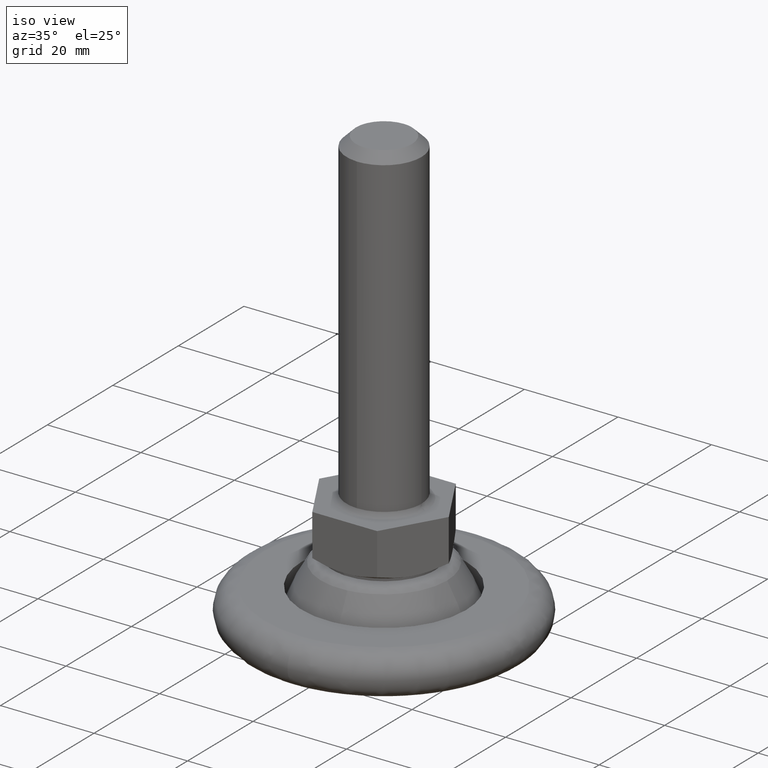
[diagram: clean part render]
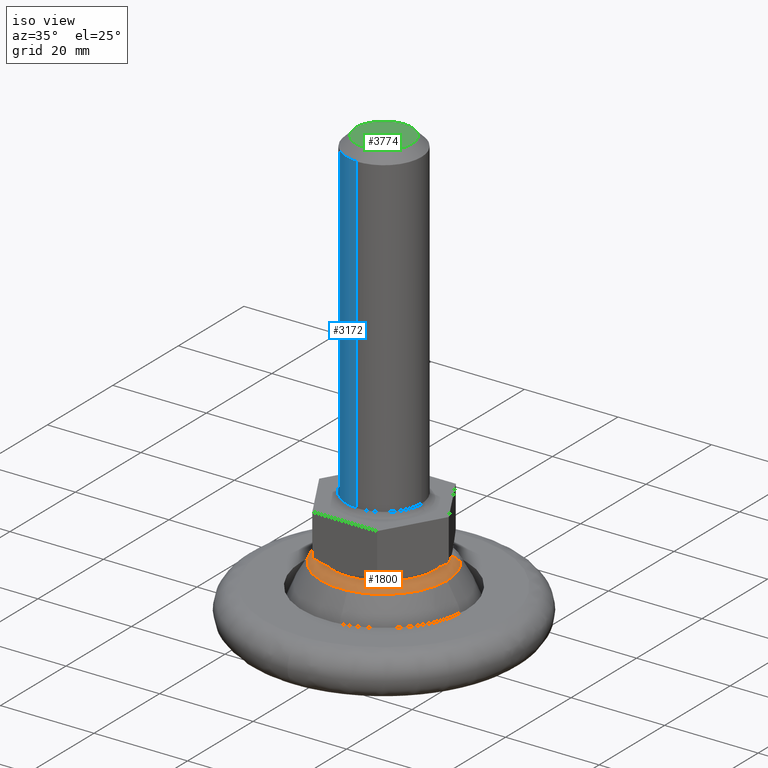
[diagram: same view with three faces highlighted in distinct colors, each labeled with its STEP entity id]
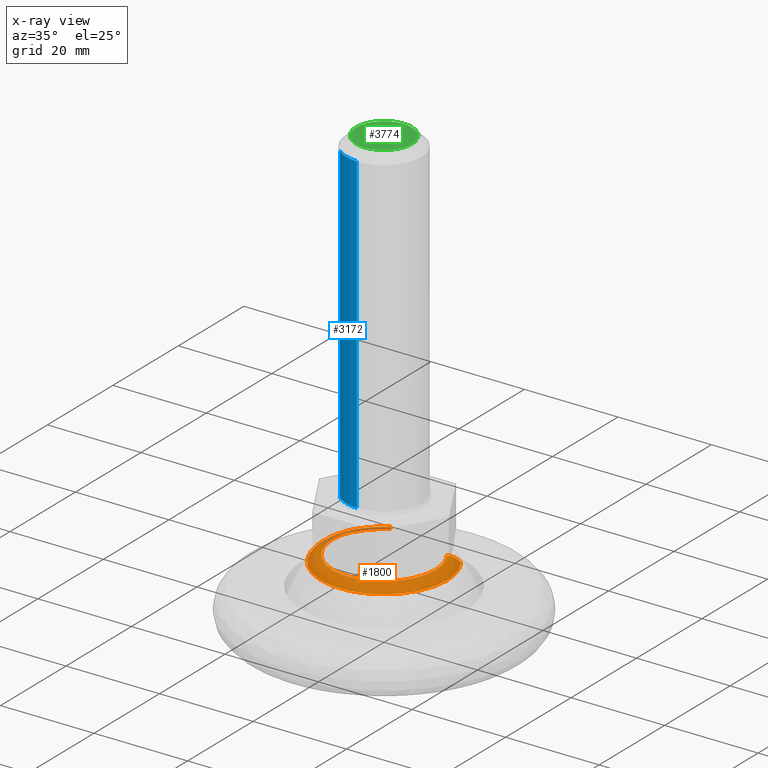
[diagram: x-ray of the same camera — body ghosted, the three highlighted faces saturated]
A machine part, iso view with three faces highlighted in distinct colors.
The next image is the same camera in x-ray (body ghosted, the three faces saturated) — at least one of them is partly hidden behind the body in this view.
Their STEP definitions:

[orange] entity #1800 — the highlighted face is a freeform B-spline surface patch.
#1589=CARTESIAN_POINT('',(-6.724307567911277,11.721686633297310,13.637803122701831));
#1590=VERTEX_POINT('',#1589);
#1591=CARTESIAN_POINT('',(11.317920465920450,7.383690412388514,13.637805176386010));
#1592=VERTEX_POINT('',#1591);
#1608=CARTESIAN_POINT('',(-5.473598316284480,9.541473760583827,15.0));
#1609=VERTEX_POINT('',#1608);
#1610=CARTESIAN_POINT('',(-5.473598316284480,9.541473760583825,15.000000000000007));
#1611=CARTESIAN_POINT('',(-6.282629561897292,10.951761830363495,14.999999997440884));
#1612=CARTESIAN_POINT('',(-6.724307567911277,11.721686633297317,13.637803122701831));
#1620=(BOUNDED_CURVE()B_SPLINE_CURVE(2,(#1610,#1611,#1612),.UNSPECIFIED.,.F.,.U.)B_SPLINE_CURVE_WITH_KNOTS((3,3),(-1.631618810760526,-0.384112692579945),.UNSPECIFIED.)CURVE()GEOMETRIC_REPRESENTATION_ITEM()RATIONAL_B_SPLINE_CURVE((0.894185661480914,0.784958265994968,0.891465173889847))REPRESENTATION_ITEM(''));
#1621=EDGE_CURVE('',#1609,#1590,#1620,.T.);
#1623=CARTESIAN_POINT('',(9.212808442306098,6.010337815472585,15.0));
#1624=VERTEX_POINT('',#1623);
#1640=CARTESIAN_POINT('',(9.212808442306098,6.010337815472585,14.999999999999998));
#1641=CARTESIAN_POINT('',(10.574516379661997,6.898701527659321,14.999999997500785));
#1642=CARTESIAN_POINT('',(11.317920465920455,7.383690412388514,13.637805176386008));
#1650=(BOUNDED_CURVE()B_SPLINE_CURVE(2,(#1640,#1641,#1642),.UNSPECIFIED.,.F.,.U.)B_SPLINE_CURVE_WITH_KNOTS((3,3),(-1.631618810808825,-0.384113812042627),.UNSPECIFIED.)CURVE()GEOMETRIC_REPRESENTATION_ITEM()RATIONAL_B_SPLINE_CURVE((0.914762511651613,0.803021693956893,0.911979225099946))REPRESENTATION_ITEM(''));
#1651=EDGE_CURVE('',#1624,#1592,#1650,.T.);
#1656=CARTESIAN_POINT('',(9.094180758044047,5.932946381263616,14.996654474424913));
#1657=CARTESIAN_POINT('',(15.027127139307661,-3.161234376780432,14.996654474424917));
#1658=CARTESIAN_POINT('',(5.932946381263617,-9.094180758044047,14.996654474424913));
#1659=CARTESIAN_POINT('',(-3.161234376780430,-15.027127139307661,14.996654474424917));
#1660=CARTESIAN_POINT('',(-9.094180758044047,-5.932946381263617,14.996654474424913));
#1661=CARTESIAN_POINT('',(-15.027127139307661,3.161234376780429,14.996654474424917));
#1662=CARTESIAN_POINT('',(-5.932946381263617,9.094180758044047,14.996654474424913));
#1663=CARTESIAN_POINT('',(-5.672674835092709,9.263979134509647,14.996654474424920));
#1664=CARTESIAN_POINT('',(-5.403118147361754,9.418614054550581,14.996654474424920));
#1665=CARTESIAN_POINT('',(10.612134740815231,6.923243344631203,15.082320628495140));
#1666=CARTESIAN_POINT('',(17.535378085446428,-3.688891396184024,15.082320628495143));
#1667=CARTESIAN_POINT('',(6.923243344631205,-10.612134740815225,15.082320628495140));
#1668=CARTESIAN_POINT('',(-3.688891396184022,-17.535378085446428,15.082320628495143));
#1669=CARTESIAN_POINT('',(-10.612134740815225,-6.923243344631205,15.082320628495140));
#1670=CARTESIAN_POINT('',(-17.535378085446432,3.688891396184022,15.082320628495143));
#1671=CARTESIAN_POINT('',(-6.923243344631206,10.612134740815225,15.082320628495140));
#1672=CARTESIAN_POINT('',(-6.619528607630525,10.810274990912056,15.082320628495141));
#1673=CARTESIAN_POINT('',(-6.304978900889926,10.990720778253383,15.082320628495143));
#1674=CARTESIAN_POINT('',(11.380528290644813,7.424535088454894,13.516916846854881));
#1675=CARTESIAN_POINT('',(18.805063379099700,-3.955993202189921,13.516916846854885));
#1676=CARTESIAN_POINT('',(7.424535088454894,-11.380528290644813,13.516916846854881));
#1677=CARTESIAN_POINT('',(-3.955993202189920,-18.805063379099700,13.516916846854885));
#1678=CARTESIAN_POINT('',(-11.380528290644813,-7.424535088454894,13.516916846854881));
#1679=CARTESIAN_POINT('',(-18.805063379099714,3.955993202189918,13.516916846854885));
#1680=CARTESIAN_POINT('',(-7.424535088454896,11.380528290644813,13.516916846854881));
#1681=CARTESIAN_POINT('',(-7.098829258182287,11.593015295080381,13.516916846854887));
#1682=CARTESIAN_POINT('',(-6.761503929791254,11.786526632612448,13.516916846854889));
#1690=(BOUNDED_SURFACE()B_SPLINE_SURFACE(2,2,((#1656,#1665,#1674),(#1657,#1666,#1675),(#1658,#1667,#1676),(#1659,#1668,#1677),(#1660,#1669,#1678),(#1661,#1670,#1679),(#1662,#1671,#1680),(#1663,#1672,#1681),(#1664,#1673,#1682)),.UNSPECIFIED.,.F.,.F.,.U.)B_SPLINE_SURFACE_WITH_KNOTS((3,2,2,2,3),(3,3),(0.0,22.513725819704309,45.027451639408618,67.541177459112930,68.441726491901093),(0.0,3.346640287805010),.UNSPECIFIED.)GEOMETRIC_REPRESENTATION_ITEM()RATIONAL_B_SPLINE_SURFACE(((0.926476111117013,0.791446990509623,0.923415026648345),(0.655117540778181,0.559637533939039,0.652953027192601),(0.926476111117013,0.791446990509623,0.923415026648345),(0.655117540778181,0.559637533939039,0.652953027192601),(0.926476111117013,0.791446990509623,0.923415026648345),(0.655117540778181,0.559637533939039,0.652953027192601),(0.926476111117013,0.791446990509623,0.923415026648345),(0.915621768303459,0.782174612246799,0.912596546670115),(0.905635772914990,0.773644024245002,0.902643545090143)))REPRESENTATION_ITEM('')SURFACE());
#1691=CARTESIAN_POINT('',(-13.513483884076759,0.0,13.637802467446360));
#1692=VERTEX_POINT('',#1691);
#1693=CARTESIAN_POINT('',(-13.513483884076759,0.0,13.637802467446360));
#1694=CARTESIAN_POINT('',(-13.513483884076752,7.826981936521849,13.637802467446363));
#1695=CARTESIAN_POINT('',(-6.724307567911277,11.721686633297317,13.637803122701833));
#1703=(BOUNDED_CURVE()B_SPLINE_CURVE(2,(#1693,#1694,#1695),.UNSPECIFIED.,.F.,.U.)B_SPLINE_CURVE_WITH_KNOTS((3,3),(0.0,0.165154827682648),.UNSPECIFIED.)CURVE()GEOMETRIC_REPRESENTATION_ITEM()RATIONAL_B_SPLINE_CURVE((1.0,0.806509083669792,0.868665838896970))REPRESENTATION_ITEM(''));
#1704=EDGE_CURVE('',#1692,#1590,#1703,.T.);
#1705=ORIENTED_EDGE('',*,*,#1704,.F.);
#1706=CARTESIAN_POINT('',(1.560306517976044,-13.423086874775780,13.637826827674020));
#1707=VERTEX_POINT('',#1706);
#1708=CARTESIAN_POINT('',(1.560306517976044,-13.423086874775779,13.637826827674028));
#1709=CARTESIAN_POINT('',(0.782770067624770,-13.513468523574419,13.637826199399273));
#1710=CARTESIAN_POINT('',(-0.000001732430517,-13.513468980232510,13.637825493863200));
#1711=CARTESIAN_POINT('',(-13.513484700116285,-13.513476863809041,13.637813313749373));
#1712=CARTESIAN_POINT('',(-13.513483884076759,0.0,13.637802467446360));
#1720=(BOUNDED_CURVE()B_SPLINE_CURVE(2,(#1708,#1709,#1710,#1711,#1712),.UNSPECIFIED.,.F.,.U.)B_SPLINE_CURVE_WITH_KNOTS((3,2,3),(0.730000197236275,0.750000000000000,1.0),.UNSPECIFIED.)CURVE()GEOMETRIC_REPRESENTATION_ITEM()RATIONAL_B_SPLINE_CURVE((0.956886506399830,0.976568773571594,1.0,0.707106781186548,1.0))REPRESENTATION_ITEM(''));
#1721=EDGE_CURVE('',#1707,#1692,#1720,.T.);
#1722=ORIENTED_EDGE('',*,*,#1721,.F.);
#1723=CARTESIAN_POINT('',(13.513481976110320,0.0,13.637805395541809));
#1724=VERTEX_POINT('',#1723);
#1725=CARTESIAN_POINT('',(13.513481976110320,0.0,13.637805395541809));
#1726=CARTESIAN_POINT('',(13.513482013702552,-12.033651490261969,13.637816111607915));
#1727=CARTESIAN_POINT('',(1.560306517976044,-13.423086874775779,13.637826827674028));
#1735=(BOUNDED_CURVE()B_SPLINE_CURVE(2,(#1725,#1726,#1727),.UNSPECIFIED.,.F.,.U.)B_SPLINE_CURVE_WITH_KNOTS((3,3),(0.500000000000000,0.730000197236275),.UNSPECIFIED.)CURVE()GEOMETRIC_REPRESENTATION_ITEM()RATIONAL_B_SPLINE_CURVE((1.0,0.730538007614954,0.956886506399830))REPRESENTATION_ITEM(''));
#1736=EDGE_CURVE('',#1724,#1707,#1735,.T.);
#1737=ORIENTED_EDGE('',*,*,#1736,.F.);
#1738=CARTESIAN_POINT('',(11.317920465920455,7.383690412388514,13.637805176386001));
#1739=CARTESIAN_POINT('',(13.513481976110320,4.018273506704597,13.637805395541806));
#1740=CARTESIAN_POINT('',(13.513481976110320,0.0,13.637805395541809));
#1748=(BOUNDED_CURVE()B_SPLINE_CURVE(2,(#1738,#1739,#1740),.UNSPECIFIED.,.F.,.U.)B_SPLINE_CURVE_WITH_KNOTS((3,3),(0.406398543781252,0.500000000000000),.UNSPECIFIED.)CURVE()GEOMETRIC_REPRESENTATION_ITEM()RATIONAL_B_SPLINE_CURVE((0.862793525422079,0.890339072809857,1.0))REPRESENTATION_ITEM(''));
#1749=EDGE_CURVE('',#1592,#1724,#1748,.T.);
#1750=ORIENTED_EDGE('',*,*,#1749,.F.);
#1751=ORIENTED_EDGE('',*,*,#1651,.F.);
#1752=CARTESIAN_POINT('',(11.0,0.0,15.0));
#1753=VERTEX_POINT('',#1752);
#1754=CARTESIAN_POINT('',(9.212808442306098,6.010337815472585,15.0));
#1755=CARTESIAN_POINT('',(11.0,3.270882230598980,15.000000000000005));
#1756=CARTESIAN_POINT('',(11.0,0.0,15.0));
#1764=(BOUNDED_CURVE()B_SPLINE_CURVE(2,(#1754,#1755,#1756),.UNSPECIFIED.,.F.,.U.)B_SPLINE_CURVE_WITH_KNOTS((3,3),(0.406398532966234,0.500000000000000),.UNSPECIFIED.)CURVE()GEOMETRIC_REPRESENTATION_ITEM()RATIONAL_B_SPLINE_CURVE((0.862793519056675,0.890339060139276,1.0))REPRESENTATION_ITEM(''));
#1765=EDGE_CURVE('',#1624,#1753,#1764,.T.);
#1766=ORIENTED_EDGE('',*,*,#1765,.T.);
#1767=CARTESIAN_POINT('',(-11.0,0.0,15.0));
#1768=VERTEX_POINT('',#1767);
#1769=CARTESIAN_POINT('',(11.0,0.0,15.0));
#1770=CARTESIAN_POINT('',(11.0,-11.0,14.999999999999995));
#1771=CARTESIAN_POINT('',(0.0,-11.0,15.0));
#1772=CARTESIAN_POINT('',(-11.0,-11.0,14.999999999999995));
#1773=CARTESIAN_POINT('',(-11.0,0.0,15.0));
#1781=(BOUNDED_CURVE()B_SPLINE_CURVE(2,(#1769,#1770,#1771,#1772,#1773),.UNSPECIFIED.,.F.,.U.)B_SPLINE_CURVE_WITH_KNOTS((3,2,3),(0.500000000000000,0.750000000000000,1.0),.UNSPECIFIED.)CURVE()GEOMETRIC_REPRESENTATION_ITEM()RATIONAL_B_SPLINE_CURVE((1.0,0.707106781186548,1.0,0.707106781186548,1.0))REPRESENTATION_ITEM(''));
#1782=EDGE_CURVE('',#1753,#1768,#1781,.T.);
#1783=ORIENTED_EDGE('',*,*,#1782,.T.);
#1784=CARTESIAN_POINT('',(-11.0,0.0,15.0));
#1785=CARTESIAN_POINT('',(-11.000000000000002,6.371177039400259,15.0));
#1786=CARTESIAN_POINT('',(-5.473598316284480,9.541473760583827,15.000000000000005));
#1794=(BOUNDED_CURVE()B_SPLINE_CURVE(2,(#1784,#1785,#1786),.UNSPECIFIED.,.F.,.U.)B_SPLINE_CURVE_WITH_KNOTS((3,3),(0.0,0.165154822952899),.UNSPECIFIED.)CURVE()GEOMETRIC_REPRESENTATION_ITEM()RATIONAL_B_SPLINE_CURVE((1.0,0.806509089211038,0.868665835336846))REPRESENTATION_ITEM(''));
#1795=EDGE_CURVE('',#1768,#1609,#1794,.T.);
#1796=ORIENTED_EDGE('',*,*,#1795,.T.);
#1797=ORIENTED_EDGE('',*,*,#1621,.T.);
#1798=EDGE_LOOP('',(#1705,#1722,#1737,#1750,#1751,#1766,#1783,#1796,#1797));
#1799=FACE_OUTER_BOUND('',#1798,.T.);
#1800=ADVANCED_FACE('',(#1799),#1690,.T.);

[blue] entity #3172 — the highlighted face is a freeform B-spline surface patch.
#2896=CARTESIAN_POINT('',(-5.228298970476070,-6.055153992700669,94.0));
#2897=VERTEX_POINT('',#2896);
#2911=CARTESIAN_POINT('',(-0.209402807093240,-7.997258934423596,94.0));
#2912=VERTEX_POINT('',#2911);
#2913=CARTESIAN_POINT('',(-0.209402807093240,-7.997258934423596,94.0));
#2914=CARTESIAN_POINT('',(-3.065667591805783,-7.922469576151834,94.0));
#2915=CARTESIAN_POINT('',(-5.228298970476070,-6.055153992700670,94.0));
#2923=(BOUNDED_CURVE()B_SPLINE_CURVE(2,(#2913,#2914,#2915),.UNSPECIFIED.,.F.,.U.)B_SPLINE_CURVE_WITH_KNOTS((3,3),(0.254603027166109,0.363957658399154),.UNSPECIFIED.)CURVE()GEOMETRIC_REPRESENTATION_ITEM()RATIONAL_B_SPLINE_CURVE((0.989413021424234,0.866013906984081,0.854696220643495))REPRESENTATION_ITEM(''));
#2924=EDGE_CURVE('',#2912,#2897,#2923,.T.);
#3039=CARTESIAN_POINT('',(-5.228297325511093,-6.055155413038447,27.0));
#3040=VERTEX_POINT('',#3039);
#3054=CARTESIAN_POINT('',(-5.228298970476070,-6.055153992700669,94.0));
#3055=CARTESIAN_POINT('',(-5.228297325511093,-6.055155413038447,27.0));
#3056=QUASI_UNIFORM_CURVE('',1,(#3054,#3055),.UNSPECIFIED.,.F.,.U.);
#3057=EDGE_CURVE('',#2897,#3040,#3056,.T.);
#3064=CARTESIAN_POINT('',(-0.209415586504778,-7.997258599803363,27.0));
#3065=VERTEX_POINT('',#3064);
#3066=CARTESIAN_POINT('',(-0.209402807093240,-7.997258934423596,94.0));
#3067=CARTESIAN_POINT('',(-0.209415586504778,-7.997258599803363,27.0));
#3068=QUASI_UNIFORM_CURVE('',1,(#3066,#3067),.UNSPECIFIED.,.F.,.U.);
#3069=EDGE_CURVE('',#2912,#3065,#3068,.T.);
#3136=CARTESIAN_POINT('',(-0.184553171772572,-7.997909645045562,95.675000000036391));
#3137=CARTESIAN_POINT('',(-0.196976369910862,-7.997584332153468,95.675000000036320));
#3138=CARTESIAN_POINT('',(-3.065673046852300,-7.922464865965296,95.675000000036363));
#3139=CARTESIAN_POINT('',(-5.239308553483244,-6.045647811425933,95.675000000036391));
#3140=CARTESIAN_POINT('',(-5.250320126704341,-6.036139911708792,95.675000000036363));
#3141=CARTESIAN_POINT('',(-0.184553171772572,-7.997909645045562,25.283124998509162));
#3142=CARTESIAN_POINT('',(-0.196976369910862,-7.997584332153468,25.283124998509141));
#3143=CARTESIAN_POINT('',(-3.065673046852300,-7.922464865965296,25.283124998509152));
#3144=CARTESIAN_POINT('',(-5.239308553483244,-6.045647811425933,25.283124998509148));
#3145=CARTESIAN_POINT('',(-5.250320126704341,-6.036139911708792,25.283124998509152));
#3153=(BOUNDED_SURFACE()B_SPLINE_SURFACE(2,1,((#3136,#3141),(#3137,#3142),(#3138,#3143),(#3139,#3144),(#3140,#3145)),.UNSPECIFIED.,.F.,.F.,.U.)B_SPLINE_SURFACE_WITH_KNOTS((3,1,1,3),(2,2),(0.0,0.029114303870452,5.848971145500915,5.878070503837703),(0.0,70.391875001527225),.UNSPECIFIED.)GEOMETRIC_REPRESENTATION_ITEM()RATIONAL_B_SPLINE_SURFACE(((1.001289395343809,1.001289395343809),(1.000644697671905,1.000644697671905),(0.871126983722081,0.871126983722081),(0.855584897761986,0.855584897761986),(0.855507573755242,0.855507573755242)))REPRESENTATION_ITEM('')SURFACE());
#3154=CARTESIAN_POINT('',(-5.228297325511092,-6.055155413038448,27.0));
#3155=CARTESIAN_POINT('',(-3.065671822069454,-7.922464898007496,27.000000000000007));
#3156=CARTESIAN_POINT('',(-0.209415586504778,-7.997258599803364,27.0));
#3164=(BOUNDED_CURVE()B_SPLINE_CURVE(2,(#3154,#3155,#3156),.UNSPECIFIED.,.F.,.U.)B_SPLINE_CURVE_WITH_KNOTS((3,3),(0.636042382647553,0.745396693339168),.UNSPECIFIED.)CURVE()GEOMETRIC_REPRESENTATION_ITEM()RATIONAL_B_SPLINE_CURVE((0.854696229139790,0.866013924375955,0.989412390644159))REPRESENTATION_ITEM(''));
#3165=EDGE_CURVE('',#3040,#3065,#3164,.T.);
#3166=ORIENTED_EDGE('',*,*,#3165,.T.);
#3167=ORIENTED_EDGE('',*,*,#3069,.F.);
#3168=ORIENTED_EDGE('',*,*,#2924,.T.);
#3169=ORIENTED_EDGE('',*,*,#3057,.T.);
#3170=EDGE_LOOP('',(#3166,#3167,#3168,#3169));
#3171=FACE_OUTER_BOUND('',#3170,.T.);
#3172=ADVANCED_FACE('',(#3171),#3153,.T.);

[green] entity #3774 — the highlighted face is a freeform B-spline surface patch.
#2821=CARTESIAN_POINT('',(6.0,0.0,96.0));
#2822=VERTEX_POINT('',#2821);
#2823=CARTESIAN_POINT('',(4.137835456707617,4.344918610654714,95.999999999999943));
#2824=VERTEX_POINT('',#2823);
#2825=CARTESIAN_POINT('',(6.0,0.0,96.0));
#2826=CARTESIAN_POINT('',(5.999999999999999,2.571506686533006,95.999999999999986));
#2827=CARTESIAN_POINT('',(4.137835456707617,4.344918610654713,95.999999999999943));
#2835=(BOUNDED_CURVE()B_SPLINE_CURVE(2,(#2825,#2826,#2827),.UNSPECIFIED.,.F.,.U.)B_SPLINE_CURVE_WITH_KNOTS((3,3),(0.500000000000000,0.628682976150214),.UNSPECIFIED.)CURVE()GEOMETRIC_REPRESENTATION_ITEM()RATIONAL_B_SPLINE_CURVE((1.0,0.849238515635476,0.853680523245760))REPRESENTATION_ITEM(''));
#2836=EDGE_CURVE('',#2822,#2824,#2835,.T.);
#2838=CARTESIAN_POINT('',(-6.0,0.0,96.0));
#2839=VERTEX_POINT('',#2838);
#2840=CARTESIAN_POINT('',(-6.0,0.0,96.0));
#2841=CARTESIAN_POINT('',(-6.0,-6.0,96.0));
#2842=CARTESIAN_POINT('',(0.0,-6.0,96.0));
#2843=CARTESIAN_POINT('',(6.0,-6.0,96.0));
#2844=CARTESIAN_POINT('',(6.0,0.0,96.0));
#2852=(BOUNDED_CURVE()B_SPLINE_CURVE(2,(#2840,#2841,#2842,#2843,#2844),.UNSPECIFIED.,.F.,.U.)B_SPLINE_CURVE_WITH_KNOTS((3,2,3),(0.0,0.250000000000000,0.500000000000000),.UNSPECIFIED.)CURVE()GEOMETRIC_REPRESENTATION_ITEM()RATIONAL_B_SPLINE_CURVE((1.0,0.707106781186548,1.0,0.707106781186548,1.0))REPRESENTATION_ITEM(''));
#2853=EDGE_CURVE('',#2839,#2822,#2852,.T.);
#2855=CARTESIAN_POINT('',(0.052359213492746,5.999771538449121,95.999999999931518));
#2856=VERTEX_POINT('',#2855);
#2857=CARTESIAN_POINT('',(0.052359213492746,5.999771538449121,95.999999999931518));
#2858=CARTESIAN_POINT('',(0.026180105426143,6.0,96.0));
#2859=CARTESIAN_POINT('',(0.0,6.0,96.0));
#2860=CARTESIAN_POINT('',(-6.0,6.0,96.0));
#2861=CARTESIAN_POINT('',(-6.0,0.0,96.0));
#2869=(BOUNDED_CURVE()B_SPLINE_CURVE(2,(#2857,#2858,#2859,#2860,#2861),.UNSPECIFIED.,.F.,.U.)B_SPLINE_CURVE_WITH_KNOTS((3,2,3),(0.748460105635543,0.750000000000000,1.0),.UNSPECIFIED.)CURVE()GEOMETRIC_REPRESENTATION_ITEM()RATIONAL_B_SPLINE_CURVE((0.996414028032204,0.998195901531846,1.0,0.707106781186548,1.0))REPRESENTATION_ITEM(''));
#2870=EDGE_CURVE('',#2856,#2839,#2869,.T.);
#2980=CARTESIAN_POINT('',(4.137835456707616,4.344918610654714,95.999999999999943));
#2981=CARTESIAN_POINT('',(2.421876689012313,5.979093072247433,96.000000000000014));
#2982=CARTESIAN_POINT('',(0.052359213492746,5.999771538449121,95.999999999931518));
#2990=(BOUNDED_CURVE()B_SPLINE_CURVE(2,(#2980,#2981,#2982),.UNSPECIFIED.,.F.,.U.)B_SPLINE_CURVE_WITH_KNOTS((3,3),(0.628682976150214,0.748460105635544),.UNSPECIFIED.)CURVE()GEOMETRIC_REPRESENTATION_ITEM()RATIONAL_B_SPLINE_CURVE((0.853680523245759,0.857815109938024,0.996414028032206))REPRESENTATION_ITEM(''));
#2991=EDGE_CURVE('',#2824,#2856,#2990,.T.);
#3763=CARTESIAN_POINT('',(-6.599399976741671,6.599160150396511,96.0));
#3764=CARTESIAN_POINT('',(6.599400298606753,6.599160150396511,96.0));
#3765=CARTESIAN_POINT('',(-6.599399976741671,-6.599388889181300,96.0));
#3766=CARTESIAN_POINT('',(6.599400298606753,-6.599388889181300,96.0));
#3767=B_SPLINE_SURFACE_WITH_KNOTS('',1,1,((#3763,#3765),(#3764,#3766)),.UNSPECIFIED.,.F.,.F.,.U.,(2,2),(2,2),(0.0,13.198800275348420),(0.0,13.198549039577809),.UNSPECIFIED.);
#3768=ORIENTED_EDGE('',*,*,#2853,.T.);
#3769=ORIENTED_EDGE('',*,*,#2836,.T.);
#3770=ORIENTED_EDGE('',*,*,#2991,.T.);
#3771=ORIENTED_EDGE('',*,*,#2870,.T.);
#3772=EDGE_LOOP('',(#3768,#3769,#3770,#3771));
#3773=FACE_OUTER_BOUND('',#3772,.T.);
#3774=ADVANCED_FACE('',(#3773),#3767,.F.);